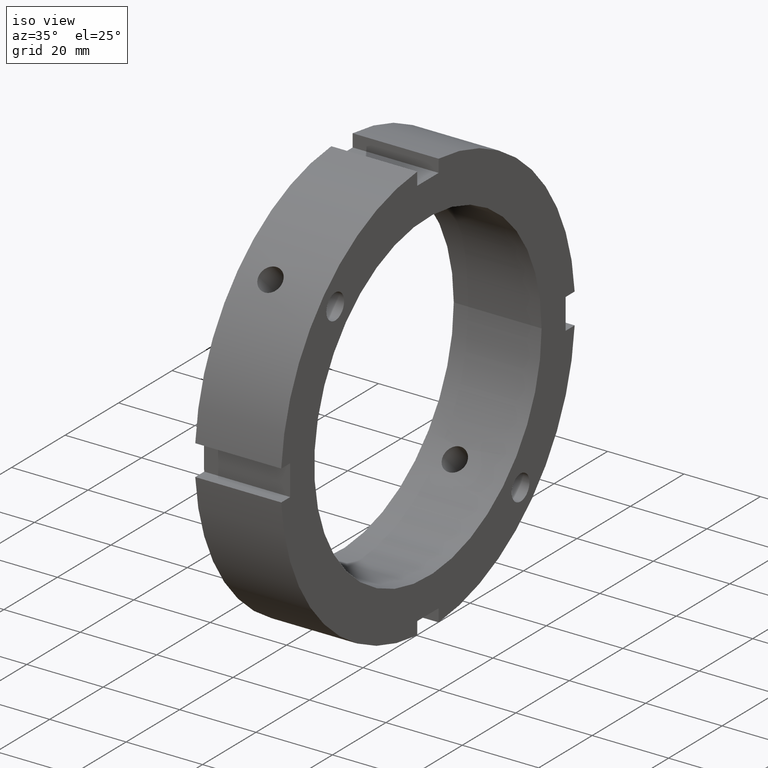
[diagram: clean part render]
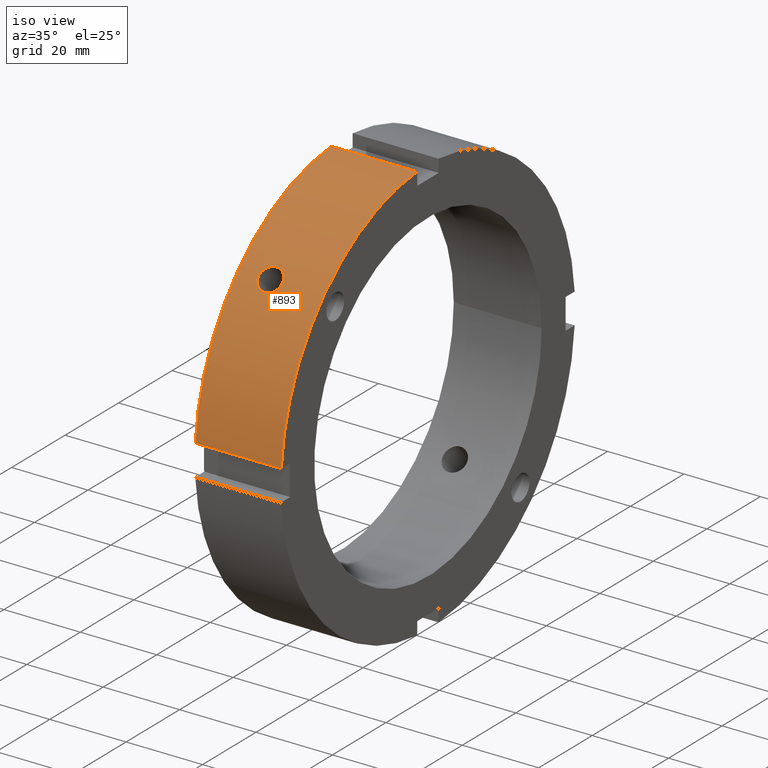
[diagram: same view with one face highlighted and labeled with its STEP entity id]
A machine part, iso view. The second image highlights one B-rep face of the part: STEP entity #893.
In plain terms, the highlighted cylindrical surface (partial cylindrical patch) has radius 55 mm, axis along (1, 0, 0).
Its self-contained STEP definition (entity closure, byte-faithful):
#209=CARTESIAN_POINT('',(8.999999999999988,-41.021079426191122,36.637017382834529));
#210=VERTEX_POINT('',#209);
#211=CARTESIAN_POINT('',(8.999999999999988,-41.021079426191122,36.637017382834529));
#212=CARTESIAN_POINT('',(8.610668511854634,-41.021079426191122,36.637017382834529));
#213=CARTESIAN_POINT('',(8.195442602060867,-40.969278019276715,36.695276979676478));
#214=CARTESIAN_POINT('',(7.431691086315975,-40.757220690078725,36.930665518261868));
#215=CARTESIAN_POINT('',(7.083158481818922,-40.596799836645289,37.10762310857681));
#216=CARTESIAN_POINT('',(6.532779568755434,-40.223146186961777,37.512322782191845));
#217=CARTESIAN_POINT('',(6.29421691230072,-39.984959023483128,37.767035214953239));
#218=CARTESIAN_POINT('',(5.977824845558581,-39.456557543399001,38.318741678982668));
#219=CARTESIAN_POINT('',(5.899999999999988,-39.166171806688808,38.615574123831415));
#220=CARTESIAN_POINT('',(5.899999999999988,-38.615574123831408,39.166171806688823));
#221=CARTESIAN_POINT('',(5.977824845558581,-38.318741678982654,39.456557543399015));
#222=CARTESIAN_POINT('',(6.294216912300723,-37.767035214953225,39.984959023483135));
#223=CARTESIAN_POINT('',(6.532779568755435,-37.512322782191838,40.223146186961785));
#224=CARTESIAN_POINT('',(7.083158481818924,-37.107623108576803,40.596799836645303));
#225=CARTESIAN_POINT('',(7.431691086315977,-36.930665518261861,40.757220690078732));
#226=CARTESIAN_POINT('',(8.195442602060869,-36.695276979676478,40.969278019276729));
#227=CARTESIAN_POINT('',(8.610668511854636,-36.637017382834522,41.021079426191136));
#228=CARTESIAN_POINT('',(9.389331488145341,-36.637017382834522,41.021079426191136));
#229=CARTESIAN_POINT('',(9.804557397939105,-36.695276979676478,40.969278019276729));
#230=CARTESIAN_POINT('',(10.568308913683996,-36.930665518261861,40.757220690078732));
#231=CARTESIAN_POINT('',(10.916841518181052,-37.107623108576803,40.596799836645303));
#232=CARTESIAN_POINT('',(11.46722043124454,-37.512322782191838,40.223146186961785));
#233=CARTESIAN_POINT('',(11.705783087699256,-37.767035214953225,39.984959023483135));
#234=CARTESIAN_POINT('',(12.022175154441396,-38.318741678982654,39.456557543399015));
#235=CARTESIAN_POINT('',(12.099999999999987,-38.615574123831408,39.166171806688823));
#236=CARTESIAN_POINT('',(12.099999999999991,-39.166171806688808,38.615574123831415));
#237=CARTESIAN_POINT('',(12.022175154441396,-39.456557543399001,38.318741678982668));
#238=CARTESIAN_POINT('',(11.705783087699256,-39.984959023483128,37.767035214953239));
#239=CARTESIAN_POINT('',(11.467220431244545,-40.223146186961777,37.512322782191845));
#240=CARTESIAN_POINT('',(10.916841518181055,-40.596799836645289,37.107623108576803));
#241=CARTESIAN_POINT('',(10.568308913684,-40.757220690078725,36.930665518261868));
#242=CARTESIAN_POINT('',(9.804557397939108,-40.969278019276715,36.695276979676478));
#243=CARTESIAN_POINT('',(9.389331488145341,-41.021079426191122,36.637017382834529));
#244=CARTESIAN_POINT('',(8.999999999999988,-41.021079426191122,36.637017382834529));
#245=B_SPLINE_CURVE_WITH_KNOTS('',3,(#211,#212,#213,#214,#215,#216,#217,#218,#219,#220,#221,#222,#223,#224,#225,#226,#227,#228,#229,#230,#231,#232,#233,#234,#235,#236,#237,#238,#239,#240,#241,#242,#243,#244),.UNSPECIFIED.,.T.,.U.,(4,2,2,2,2,2,2,2,2,2,2,2,2,2,2,2,4),(0.0,0.116799446443606,0.233598892887212,0.350398299463433,0.467197706039654,0.583997112615875,0.700796519192096,0.817595965635702,0.934395412079308,1.051194858522914,1.16799430496652,1.284793711542741,1.401593118118962,1.518392524695183,1.635191931271404,1.75199137771501,1.868790824158616),.UNSPECIFIED.);
#246=EDGE_CURVE('',#210,#210,#245,.T.);
#637=CARTESIAN_POINT('',(0.499999999999985,-54.854352607609911,4.000000000000004));
#638=VERTEX_POINT('',#637);
#653=CARTESIAN_POINT('',(22.999999999999989,-54.854352607609911,4.000000000000004));
#654=VERTEX_POINT('',#653);
#661=CARTESIAN_POINT('',(0.499999999999986,-54.854352607609911,4.000000000000004));
#662=DIRECTION('',(1.0,0.0,0.0));
#663=VECTOR('',#662,22.500000000000004);
#664=LINE('',#661,#663);
#665=EDGE_CURVE('',#638,#654,#664,.T.);
#777=CARTESIAN_POINT('',(0.499999999999985,-3.999999999999994,54.854352607609911));
#778=VERTEX_POINT('',#777);
#787=CARTESIAN_POINT('',(22.999999999999989,-3.999999999999994,54.854352607609911));
#788=VERTEX_POINT('',#787);
#789=CARTESIAN_POINT('',(22.999999999999989,-3.999999999999994,54.854352607609911));
#790=DIRECTION('',(-1.0,0.0,0.0));
#791=VECTOR('',#790,22.500000000000004);
#792=LINE('',#789,#791);
#793=EDGE_CURVE('',#788,#778,#792,.T.);
#867=CARTESIAN_POINT('',(11.749999999999988,0.0,0.0));
#868=DIRECTION('',(1.0,0.0,0.0));
#869=DIRECTION('',(0.0,1.0,0.0));
#870=AXIS2_PLACEMENT_3D('',#867,#868,#869);
#871=CYLINDRICAL_SURFACE('',#870,55.0);
#872=ORIENTED_EDGE('',*,*,#665,.T.);
#873=CARTESIAN_POINT('',(22.999999999999989,0.0,0.0));
#874=DIRECTION('',(1.0,0.0,0.0));
#875=DIRECTION('',(0.0,1.0,0.0));
#876=AXIS2_PLACEMENT_3D('',#873,#874,#875);
#877=CIRCLE('',#876,55.0);
#878=EDGE_CURVE('',#788,#654,#877,.T.);
#879=ORIENTED_EDGE('',*,*,#878,.F.);
#880=ORIENTED_EDGE('',*,*,#793,.T.);
#881=CARTESIAN_POINT('',(0.499999999999985,0.0,0.0));
#882=DIRECTION('',(1.0,0.0,0.0));
#883=DIRECTION('',(0.0,1.0,0.0));
#884=AXIS2_PLACEMENT_3D('',#881,#882,#883);
#885=CIRCLE('',#884,55.0);
#886=EDGE_CURVE('',#778,#638,#885,.T.);
#887=ORIENTED_EDGE('',*,*,#886,.T.);
#888=EDGE_LOOP('',(#872,#879,#880,#887));
#889=FACE_OUTER_BOUND('',#888,.T.);
#890=ORIENTED_EDGE('',*,*,#246,.T.);
#891=EDGE_LOOP('',(#890));
#892=FACE_BOUND('',#891,.T.);
#893=ADVANCED_FACE('',(#889,#892),#871,.T.);